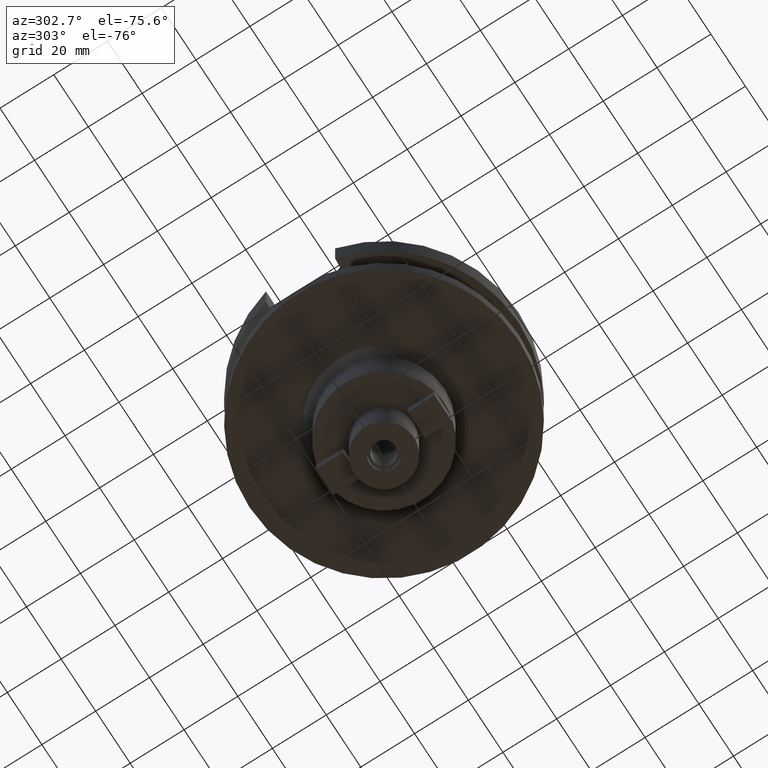
[diagram: clean part render]
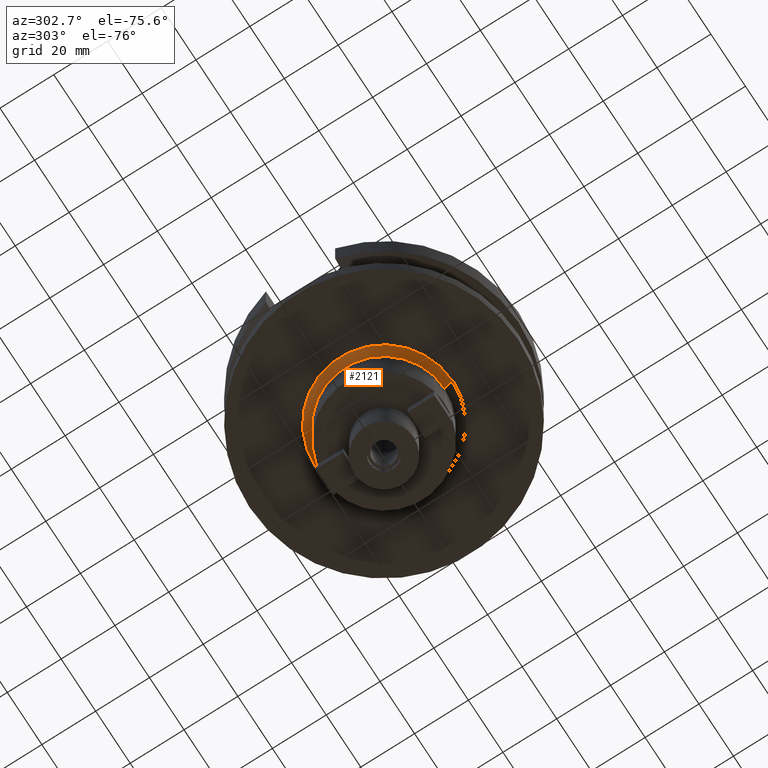
[diagram: same view with one face highlighted and labeled with its STEP entity id]
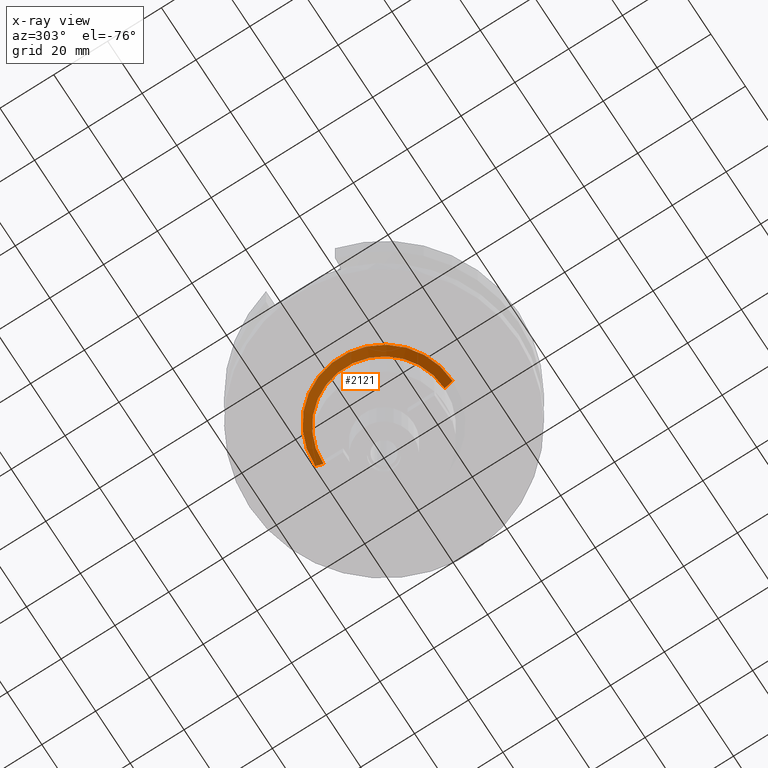
[diagram: x-ray of the same camera — body ghosted, the highlighted face saturated]
A machine part, auxiliary view. The second image highlights one B-rep face of the part: STEP entity #2121.
The next image is the same camera in x-ray: the body ghosted, the highlighted face saturated — about 0% of this face is hidden behind the body in this view.
In plain terms, the highlighted conical surface has half-angle 45 deg.
Its self-contained STEP definition (entity closure, byte-faithful):
#598=DIRECTION('',(0.E0,-7.071067811865E-1,-7.071067811865E-1));
#599=VECTOR('',#598,4.242640687119E0);
#600=CARTESIAN_POINT('',(0.E0,2.55E1,-3.8E1));
#601=LINE('',#600,#599);
#613=DIRECTION('',(0.E0,7.071067811865E-1,-7.071067811865E-1));
#614=VECTOR('',#613,4.242640687119E0);
#615=CARTESIAN_POINT('',(0.E0,-2.55E1,-3.8E1));
#616=LINE('',#615,#614);
#620=CARTESIAN_POINT('',(0.E0,0.E0,-4.1E1));
#621=DIRECTION('',(0.E0,0.E0,-1.E0));
#622=DIRECTION('',(0.E0,-1.E0,0.E0));
#623=AXIS2_PLACEMENT_3D('',#620,#621,#622);
#644=CARTESIAN_POINT('',(0.E0,0.E0,-3.8E1));
#645=DIRECTION('',(0.E0,0.E0,-1.E0));
#646=DIRECTION('',(0.E0,-1.E0,0.E0));
#647=AXIS2_PLACEMENT_3D('',#644,#645,#646);
#1418=CARTESIAN_POINT('',(0.E0,-2.25E1,-4.1E1));
#1419=VERTEX_POINT('',#1418);
#1420=CARTESIAN_POINT('',(0.E0,2.25E1,-4.1E1));
#1421=VERTEX_POINT('',#1420);
#1434=CARTESIAN_POINT('',(0.E0,2.55E1,-3.8E1));
#1435=VERTEX_POINT('',#1434);
#1436=CARTESIAN_POINT('',(0.E0,-2.55E1,-3.8E1));
#1437=VERTEX_POINT('',#1436);
#2109=CARTESIAN_POINT('',(0.E0,0.E0,-3.95E1));
#2110=DIRECTION('',(0.E0,0.E0,1.E0));
#2111=DIRECTION('',(0.E0,1.E0,0.E0));
#2112=AXIS2_PLACEMENT_3D('',#2109,#2110,#2111);
#2113=CONICAL_SURFACE('',#2112,2.4E1,4.5E1);
#2114=ORIENTED_EDGE('',*,*,#2099,.F.);
#2116=ORIENTED_EDGE('',*,*,#2115,.F.);
#2117=ORIENTED_EDGE('',*,*,#2102,.T.);
#2118=ORIENTED_EDGE('',*,*,#1942,.T.);
#2119=EDGE_LOOP('',(#2114,#2116,#2117,#2118));
#2120=FACE_OUTER_BOUND('',#2119,.F.);
#624=CIRCLE('',#623,2.25E1);
#648=CIRCLE('',#647,2.55E1);
#1942=EDGE_CURVE('',#1419,#1421,#624,.T.);
#2099=EDGE_CURVE('',#1435,#1421,#601,.T.);
#2102=EDGE_CURVE('',#1437,#1419,#616,.T.);
#2115=EDGE_CURVE('',#1437,#1435,#648,.T.);
#2121=ADVANCED_FACE('',(#2120),#2113,.T.);